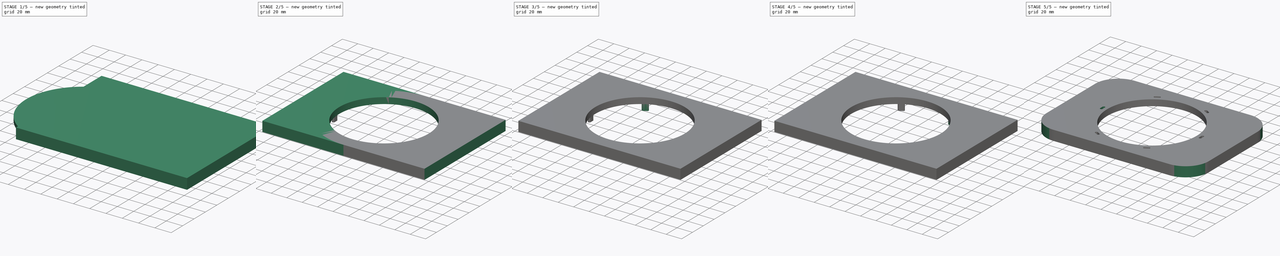
[diagram: build sequence overview — one tinted view per stage of 5, left to right]
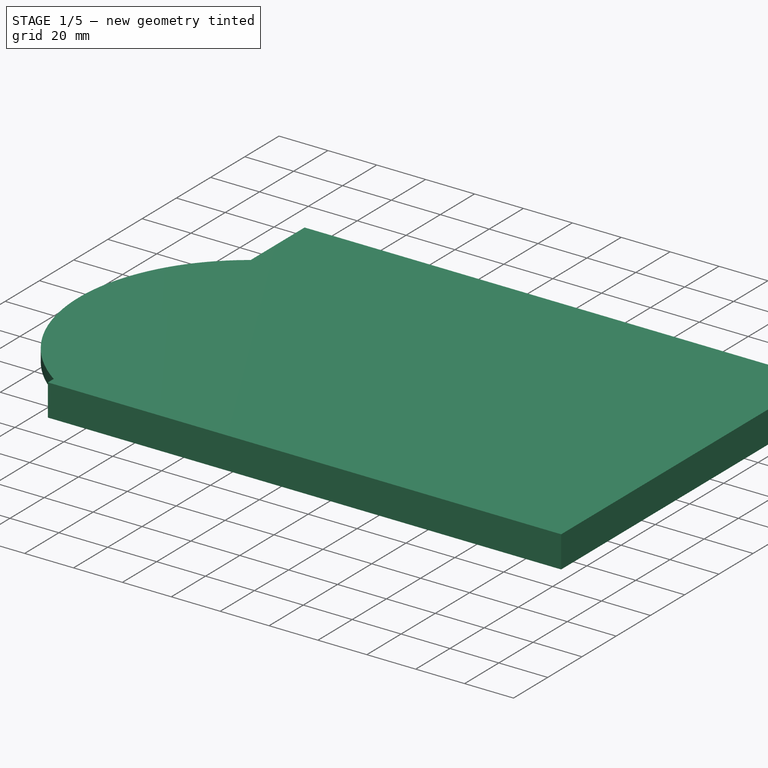
[diagram: stage 1 of 5 — iso view after this stage's code; geometry added in this stage tinted green]
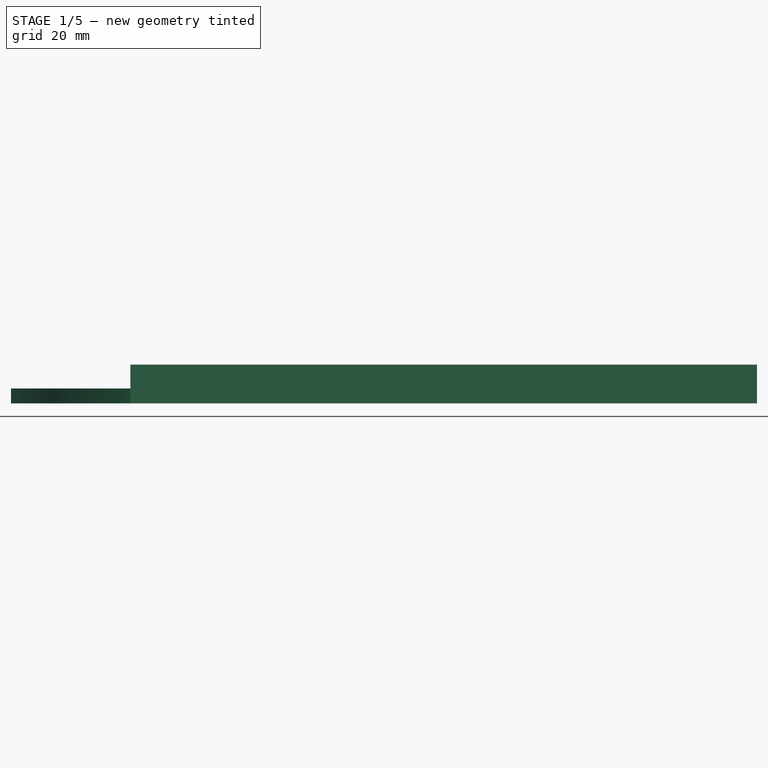
[diagram: stage 1 of 5 — front view after this stage's code; geometry added in this stage tinted green]
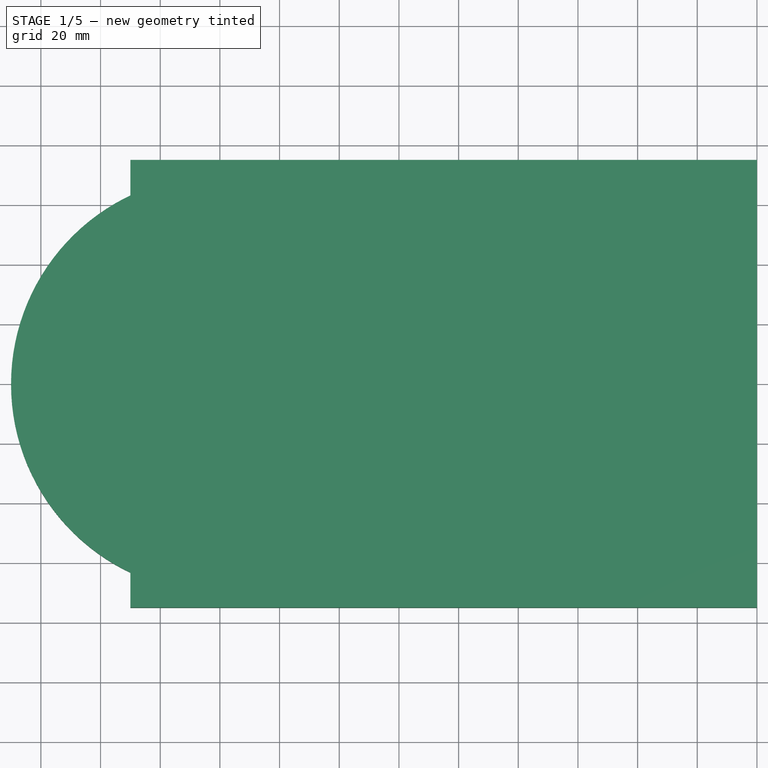
[diagram: stage 1 of 5 — top view after this stage's code; geometry added in this stage tinted green]
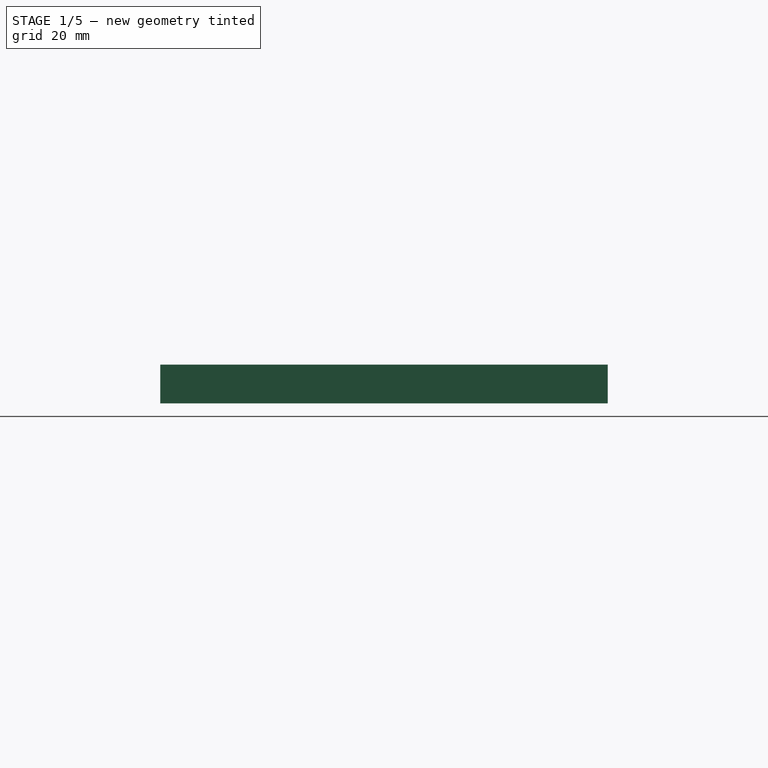
[diagram: stage 1 of 5 — right view after this stage's code; geometry added in this stage tinted green]
FCSTD DOCUMENT  (FreeCAD 0.16R6705 (Git))
Label: table_flat_mount_bearing
License: All rights reserved
LicenseURL: http://en.wikipedia.org/wiki/All_rights_reserved
objects: Part::MultiFuse×5, Part::Cylinder×3, Part::Cut×3, Sketcher::SketchObject×3, Part::Extrusion×3, Part::Mirroring×3, Part::Box×1, Part::Fillet×1
note: 22 computed .brp shape members not serialized (recipe doc carries the construction recipe); baked Part::Feature solids carry a one-line shape summary decoded from their .brp

FEATURE [Part::Box] Box  label="Cube012"
  Height = 13
  Length = 210
  Placement = pos=(-30,-75,0) rot=(0,0,1;0rad)
  Width = 150
FEATURE [Part::Cylinder] Cylinder
  Angle = 360
  Height = 13
  Placement = pos=(75,0,0) rot=(0,0,1;0rad)
  Radius = 75
FEATURE [Part::MultiFuse] Fusion
  Shapes = -> [Cylinder,Box]
FEATURE [Part::Cylinder] Cylinder002
  Angle = 360
  Height = 5
  Radius = 70
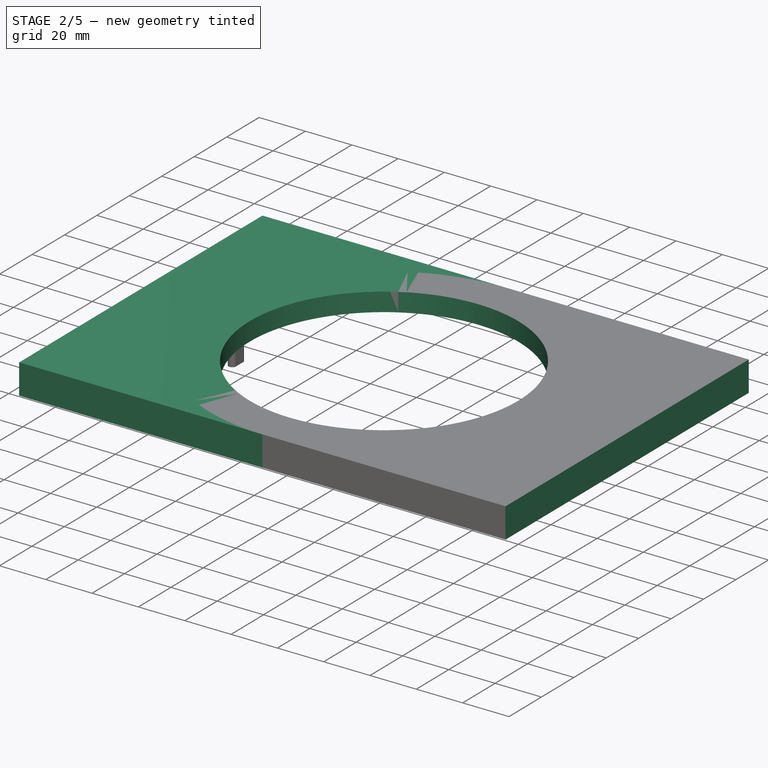
[diagram: stage 2 of 5 — iso view after this stage's code; geometry added in this stage tinted green]
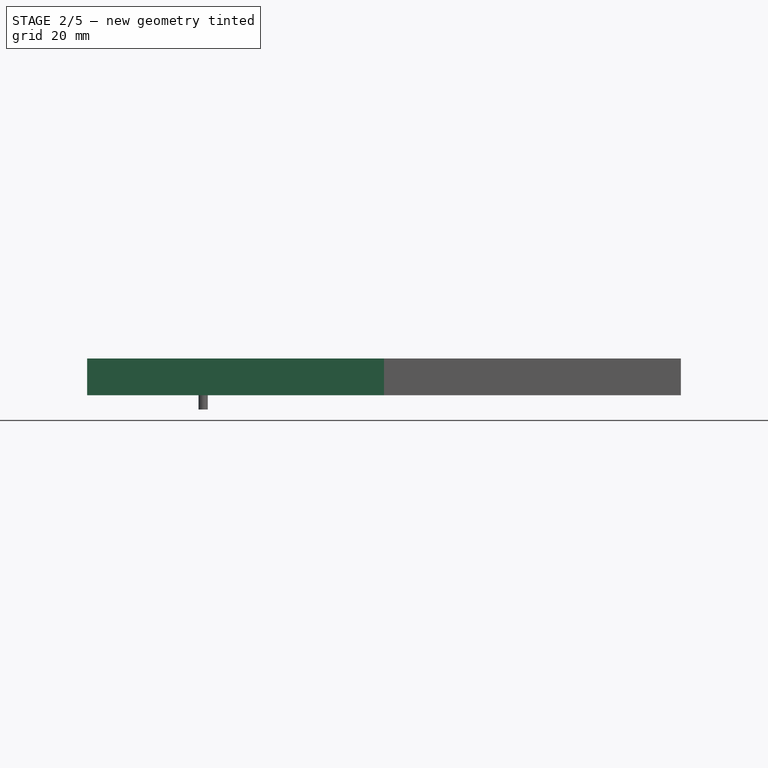
[diagram: stage 2 of 5 — front view after this stage's code; geometry added in this stage tinted green]
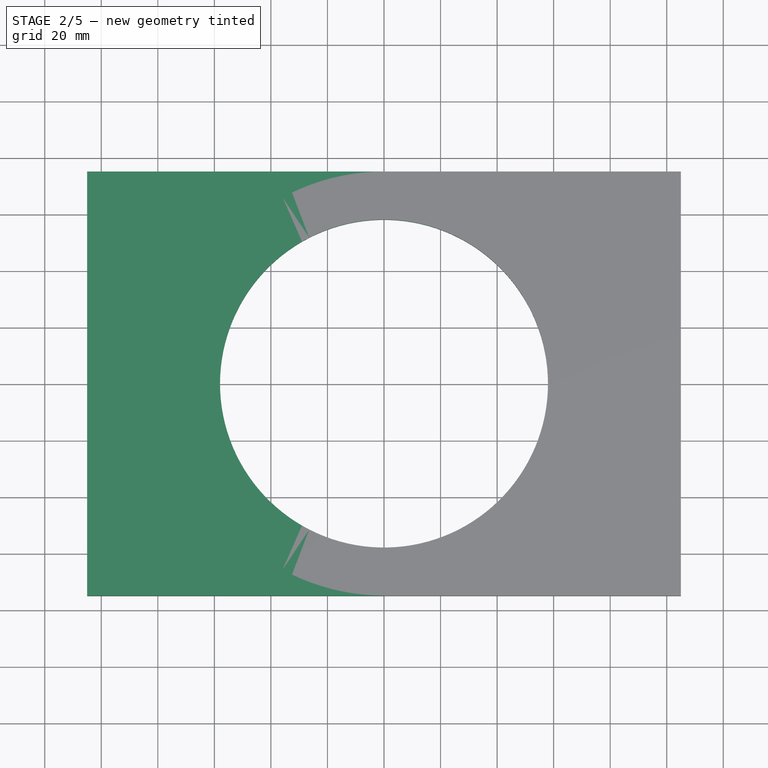
[diagram: stage 2 of 5 — top view after this stage's code; geometry added in this stage tinted green]
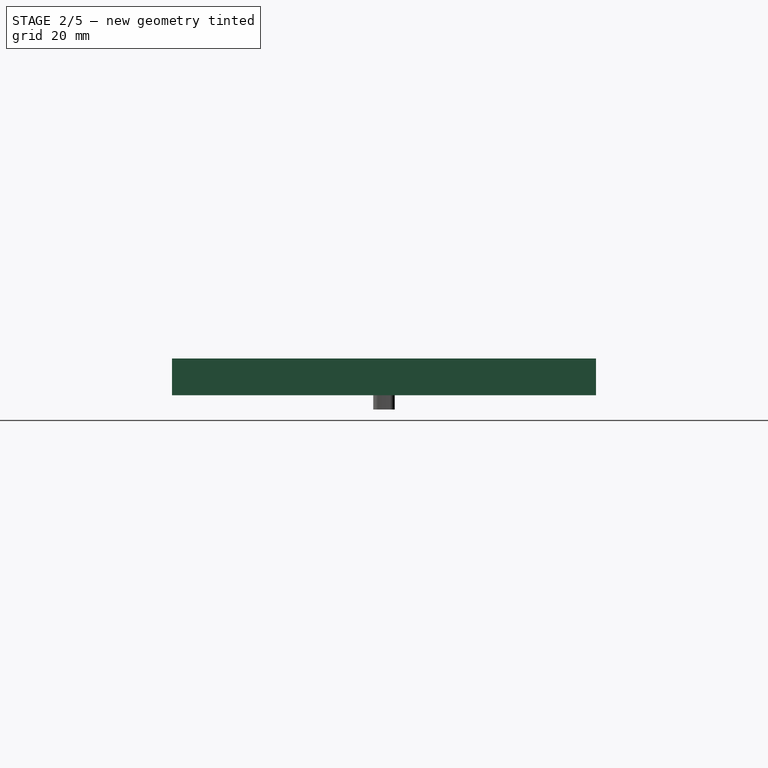
[diagram: stage 2 of 5 — right view after this stage's code; geometry added in this stage tinted green]
FEATURE [Part::Cylinder] Cylinder001
  Angle = 360
  Height = 14
  Placement = pos=(75,0,0) rot=(0,0,1;0rad)
  Radius = 58
FEATURE [Part::Cut] Cut
  Base = -> Fusion
  Placement = pos=(-75,0,0) rot=(0,0,1;0rad)
  Tool = -> Cylinder001
FEATURE [Sketcher::SketchObject] Sketch002
  Placement = pos=(0,0,10) rot=(0,0,1;0rad)
  sketch-geometry (4):
    g0: ArcOfCircle CenterX=75 CenterY=0 CenterZ=0 NormalX=0 NormalY=0 NormalZ=1 Radius=65.6 StartAngle=3.10935 EndAngle=3.17384
    g1: ArcOfCircle CenterX=75 CenterY=0 CenterZ=0 NormalX=0 NormalY=0 NormalZ=1 Radius=62.4 StartAngle=3.10503 EndAngle=3.17816
    g2: ArcOfCircle CenterX=11.0378 CenterY=2.2 CenterZ=0 NormalX=0 NormalY=0 NormalZ=1 Radius=1.60597 StartAngle=0.0506133 EndAngle=3.19471
    g3: ArcOfCircle CenterX=11.0378 CenterY=-2.2 CenterZ=0 NormalX=0 NormalY=0 NormalZ=1 Radius=1.60597 StartAngle=3.08848 EndAngle=6.23257
  constraints (16):
    c: DistanceY(g0) = 0
    c: DistanceX(g0) = 75
    c: Radius(g0) = 65.6
    c: DistanceY(g1) = 0
    c: DistanceX(g1) = 75
    c: Radius(g1) = 62.4
    c: Coincident(g2,g0)
    c: Coincident(g2,g1)
    c: DistanceY(g2) = 2.2
    c: DistanceX(g2) = 11.0378
    c: Coincident(g3,g0)
    c: Coincident(g3,g1)
    c: DistanceY(g3) = -2.2
    c: DistanceX(g3) = 11.0378
    c: Radius(g3) = 1.60597
    c: Radius(g2) = 1.60597
FEATURE [Part::Extrusion] Extrude002
  Base = -> Sketch002
  Dir = (0,0,-15)
  Placement = pos=(-75,0,0) rot=(0,0,1;0rad)
  Solid = true
FEATURE [Part::Cut] Cut001
  Base = -> Cut
  Tool = -> Cylinder002
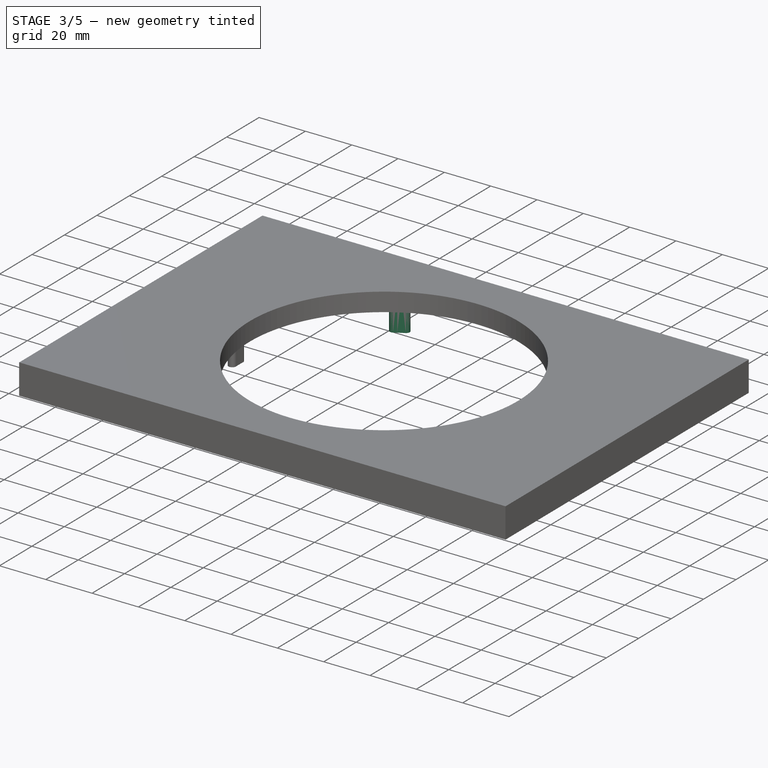
[diagram: stage 3 of 5 — iso view after this stage's code; geometry added in this stage tinted green]
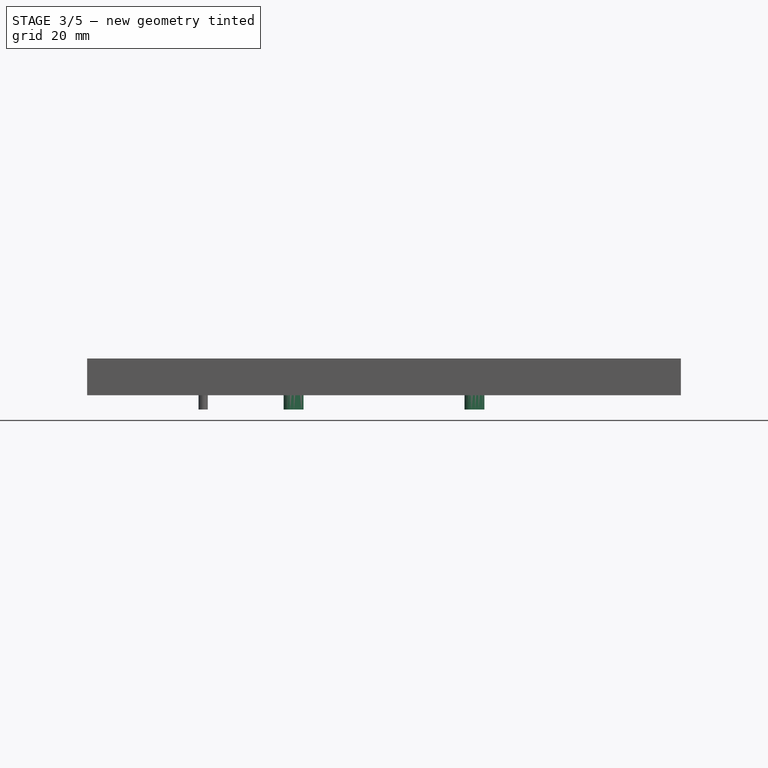
[diagram: stage 3 of 5 — front view after this stage's code; geometry added in this stage tinted green]
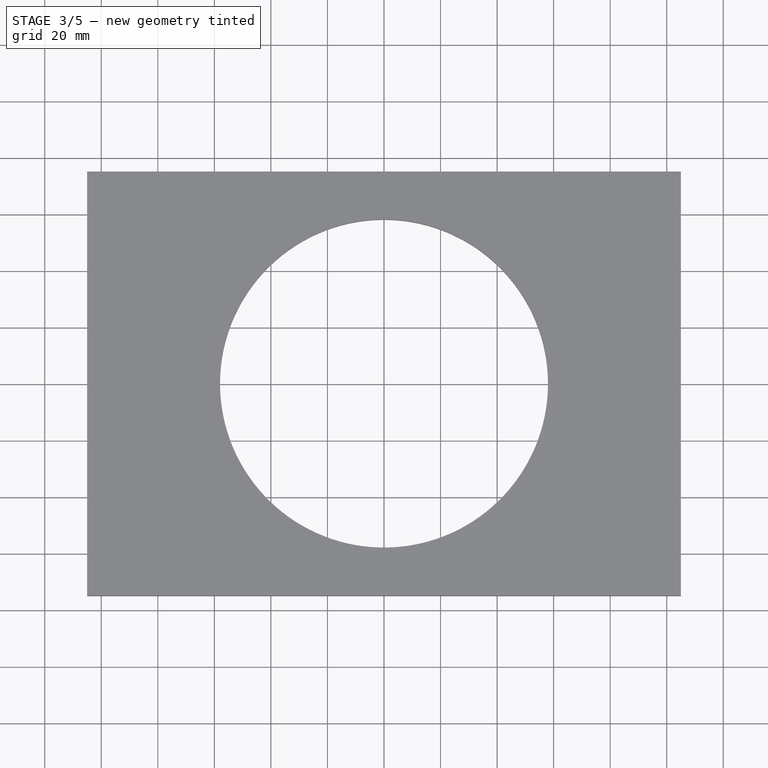
[diagram: stage 3 of 5 — top view after this stage's code; geometry added in this stage tinted green]
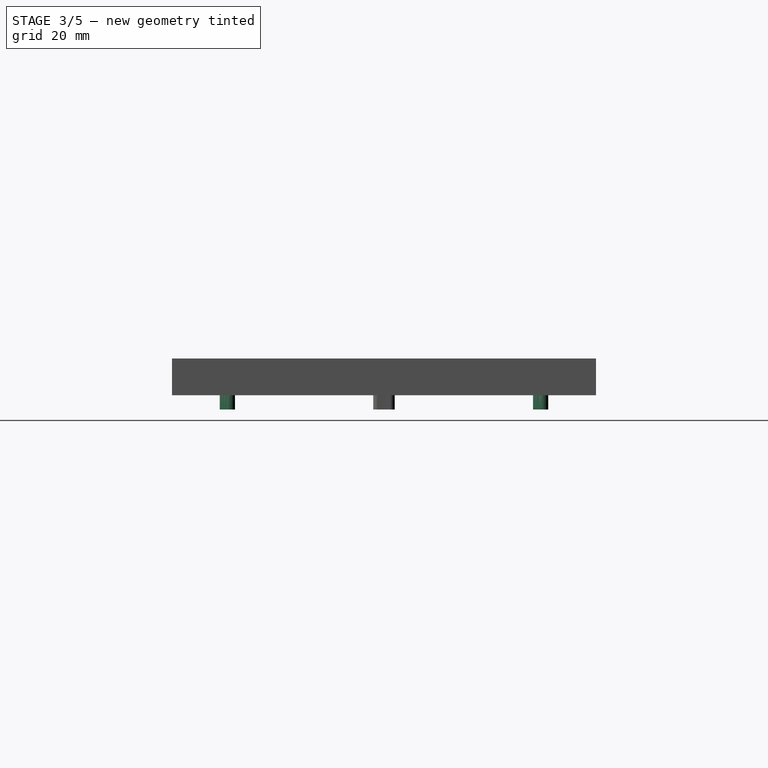
[diagram: stage 3 of 5 — right view after this stage's code; geometry added in this stage tinted green]
FEATURE [Sketcher::SketchObject] Sketch001
  Placement = pos=(0,0,10) rot=(0,0,1;0rad)
  sketch-geometry (4):
    g0: ArcOfCircle CenterX=75 CenterY=0 CenterZ=0 NormalX=0 NormalY=0 NormalZ=1 Radius=65.6 StartAngle=3.10935 EndAngle=3.17384
    g1: ArcOfCircle CenterX=75 CenterY=0 CenterZ=0 NormalX=0 NormalY=0 NormalZ=1 Radius=62.4 StartAngle=3.10503 EndAngle=3.17816
    g2: ArcOfCircle CenterX=11.0378 CenterY=2.2 CenterZ=0 NormalX=0 NormalY=0 NormalZ=1 Radius=1.60597 StartAngle=0.0506133 EndAngle=3.19471
    g3: ArcOfCircle CenterX=11.0378 CenterY=-2.2 CenterZ=0 NormalX=0 NormalY=0 NormalZ=1 Radius=1.60597 StartAngle=3.08848 EndAngle=6.23257
  constraints (16):
    c: DistanceY(g0) = 0
    c: DistanceX(g0) = 75
    c: Radius(g0) = 65.6
    c: DistanceY(g1) = 0
    c: DistanceX(g1) = 75
    c: Radius(g1) = 62.4
    c: Coincident(g2,g0)
    c: Coincident(g2,g1)
    c: DistanceY(g2) = 2.2
    c: DistanceX(g2) = 11.0378
    c: Coincident(g3,g0)
    c: Coincident(g3,g1)
    c: DistanceY(g3) = -2.2
    c: DistanceX(g3) = 11.0378
    c: Radius(g3) = 1.60597
    c: Radius(g2) = 1.60597
FEATURE [Part::Extrusion] Extrude001
  Base = -> Sketch001
  Dir = (0,0,-15)
  Placement = pos=(-75,0,0) rot=(0,0,1;0rad)
  Solid = true
FEATURE [Part::Mirroring] Part__Mirroring002  label="Extrude (Mirror #1)002"
  Base = (0,0,0)
  Normal = (1,0,0)
  Source = -> Extrude002
FEATURE [Part::MultiFuse] Fusion032
  Placement = pos=(0,0,0) rot=(0,0,1;2.0944rad)
  Shapes = -> [Part__Mirroring002,Extrude002]
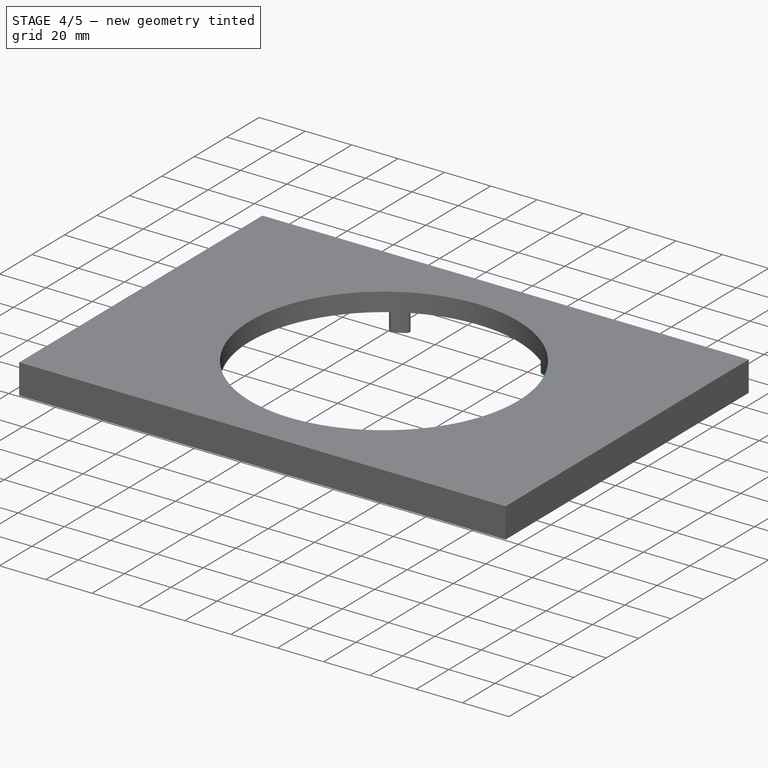
[diagram: stage 4 of 5 — iso view after this stage's code; geometry added in this stage tinted green]
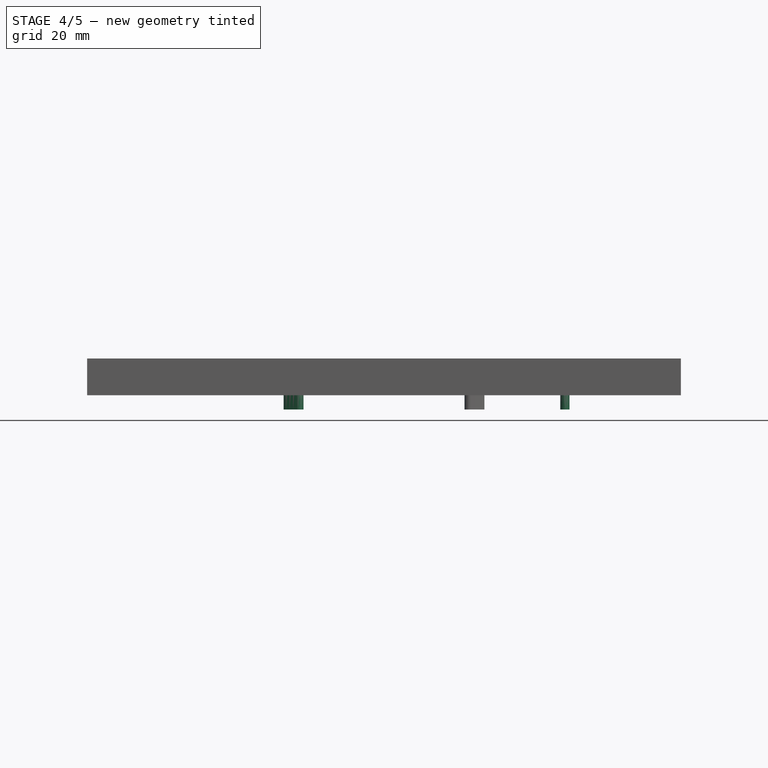
[diagram: stage 4 of 5 — front view after this stage's code; geometry added in this stage tinted green]
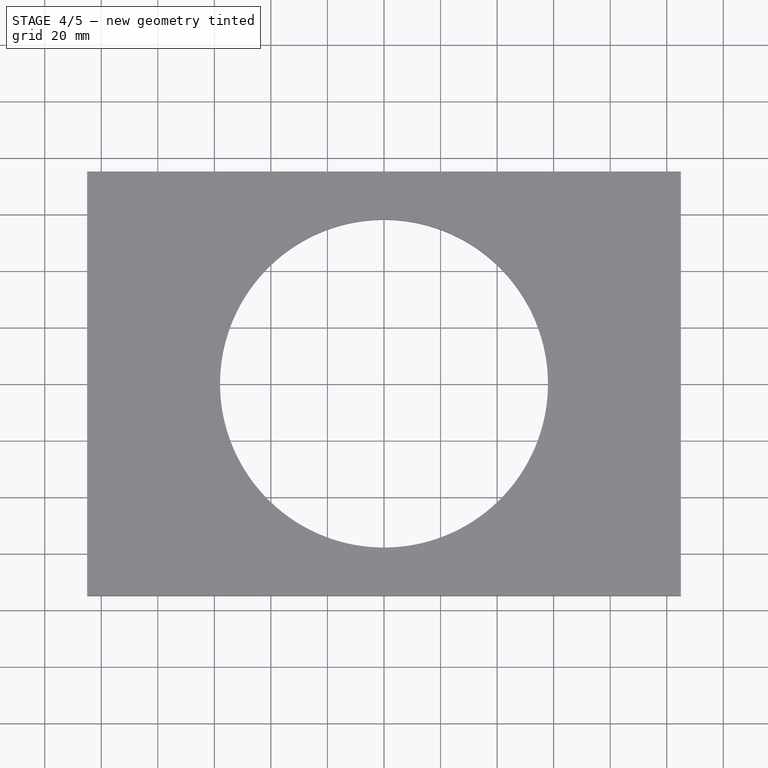
[diagram: stage 4 of 5 — top view after this stage's code; geometry added in this stage tinted green]
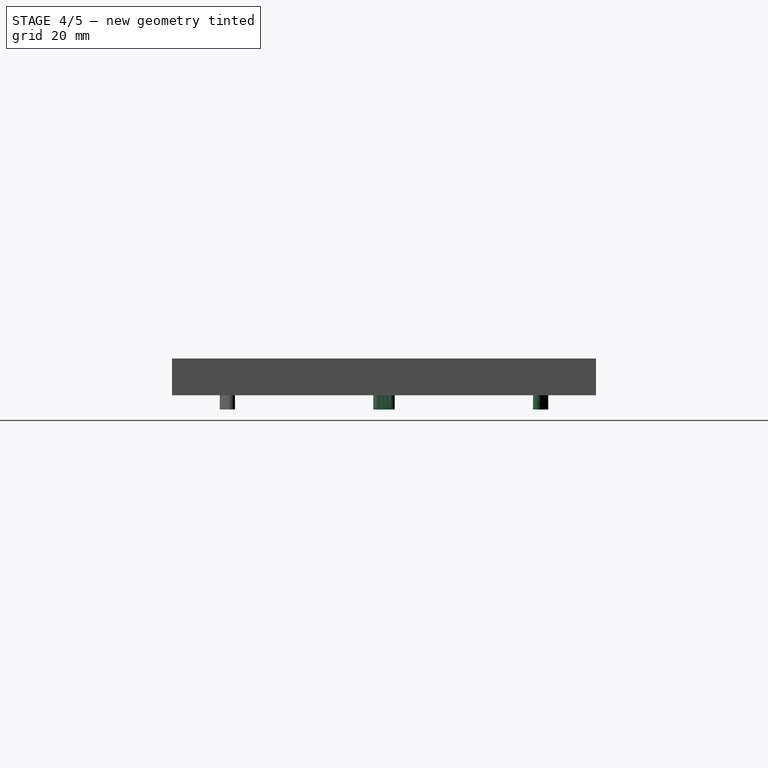
[diagram: stage 4 of 5 — right view after this stage's code; geometry added in this stage tinted green]
FEATURE [Sketcher::SketchObject] Sketch
  Placement = pos=(0,0,10) rot=(0,0,1;0rad)
  sketch-geometry (4):
    g0: ArcOfCircle CenterX=75 CenterY=0 CenterZ=0 NormalX=0 NormalY=0 NormalZ=1 Radius=65.6 StartAngle=3.10935 EndAngle=3.17384
    g1: ArcOfCircle CenterX=75 CenterY=0 CenterZ=0 NormalX=0 NormalY=0 NormalZ=1 Radius=62.4 StartAngle=3.10503 EndAngle=3.17816
    g2: ArcOfCircle CenterX=11.0378 CenterY=2.2 CenterZ=0 NormalX=0 NormalY=0 NormalZ=1 Radius=1.60597 StartAngle=0.0506133 EndAngle=3.19471
    g3: ArcOfCircle CenterX=11.0378 CenterY=-2.2 CenterZ=0 NormalX=0 NormalY=0 NormalZ=1 Radius=1.60597 StartAngle=3.08848 EndAngle=6.23257
  constraints (16):
    c: DistanceY(g0) = 0
    c: DistanceX(g0) = 75
    c: Radius(g0) = 65.6
    c: DistanceY(g1) = 0
    c: DistanceX(g1) = 75
    c: Radius(g1) = 62.4
    c: Coincident(g2,g0)
    c: Coincident(g2,g1)
    c: DistanceY(g2) = 2.2
    c: DistanceX(g2) = 11.0378
    c: Coincident(g3,g0)
    c: Coincident(g3,g1)
    c: DistanceY(g3) = -2.2
    c: DistanceX(g3) = 11.0378
    c: Radius(g3) = 1.60597
    c: Radius(g2) = 1.60597
FEATURE [Part::Extrusion] Extrude
  Base = -> Sketch
  Dir = (0,0,-15)
  Placement = pos=(-75,0,0) rot=(0,0,1;0rad)
  Solid = true
FEATURE [Part::Mirroring] Part__Mirroring  label="Extrude (Mirror #1)"
  Base = (0,0,0)
  Normal = (1,0,0)
  Source = -> Extrude
FEATURE [Part::Mirroring] Part__Mirroring001  label="Extrude (Mirror #1)001"
  Base = (0,0,0)
  Normal = (1,0,0)
  Source = -> Extrude001
FEATURE [Part::MultiFuse] Fusion031
  Placement = pos=(0,0,0) rot=(0,0,1;1.0472rad)
  Shapes = -> [Part__Mirroring001,Extrude001]
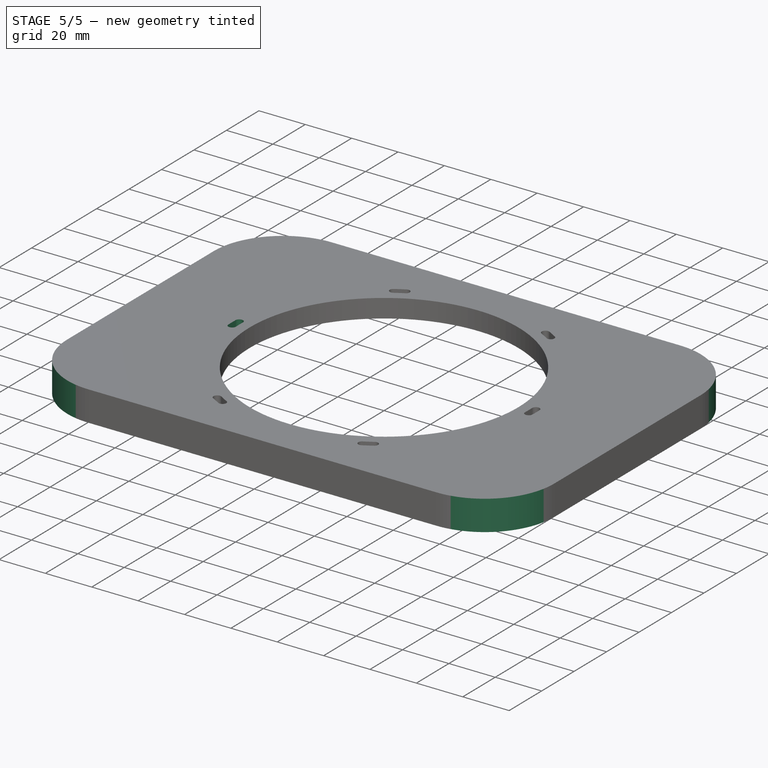
[diagram: stage 5 of 5 — iso view after this stage's code; geometry added in this stage tinted green]
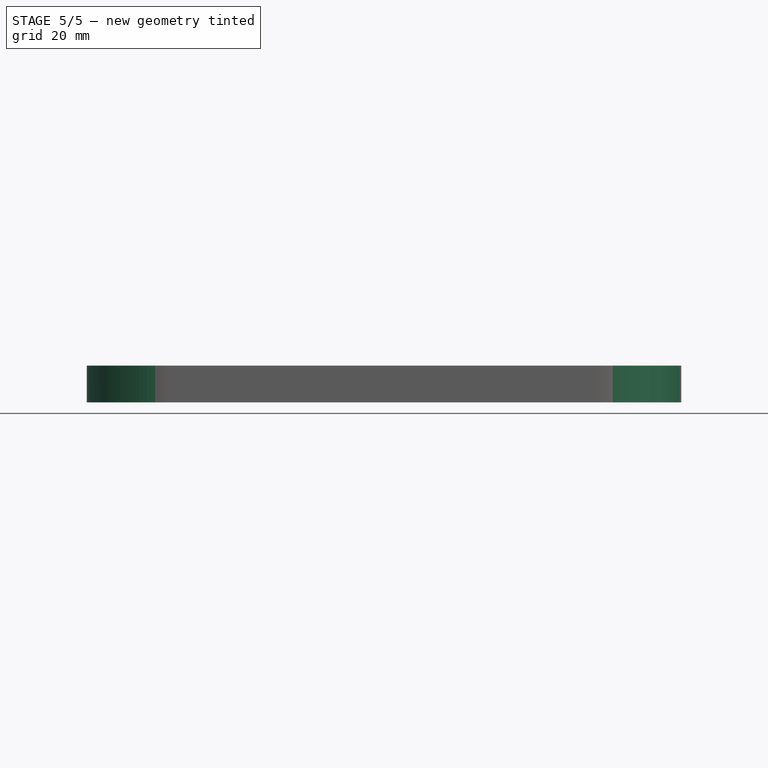
[diagram: stage 5 of 5 — front view after this stage's code; geometry added in this stage tinted green]
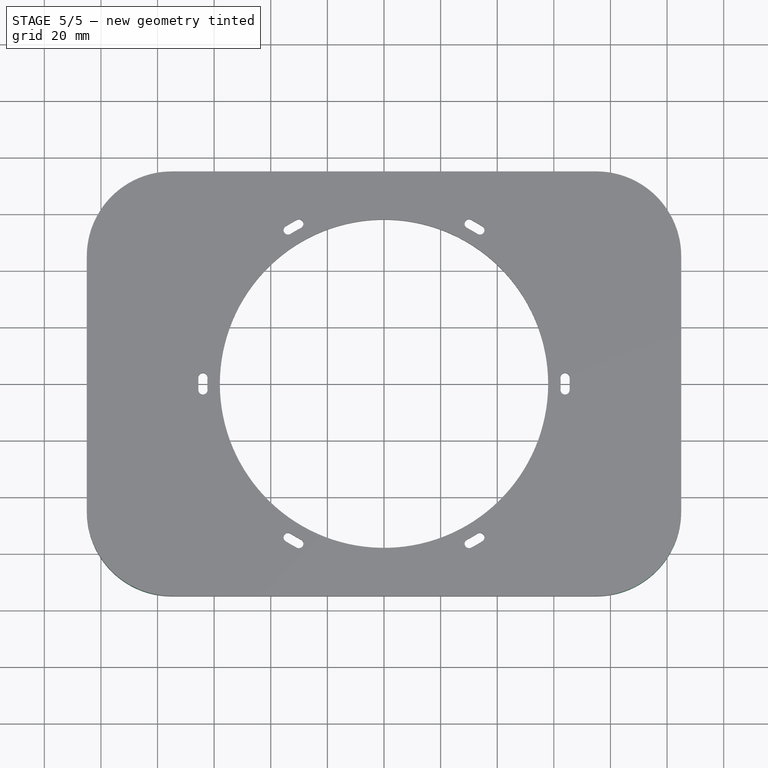
[diagram: stage 5 of 5 — top view after this stage's code; geometry added in this stage tinted green]
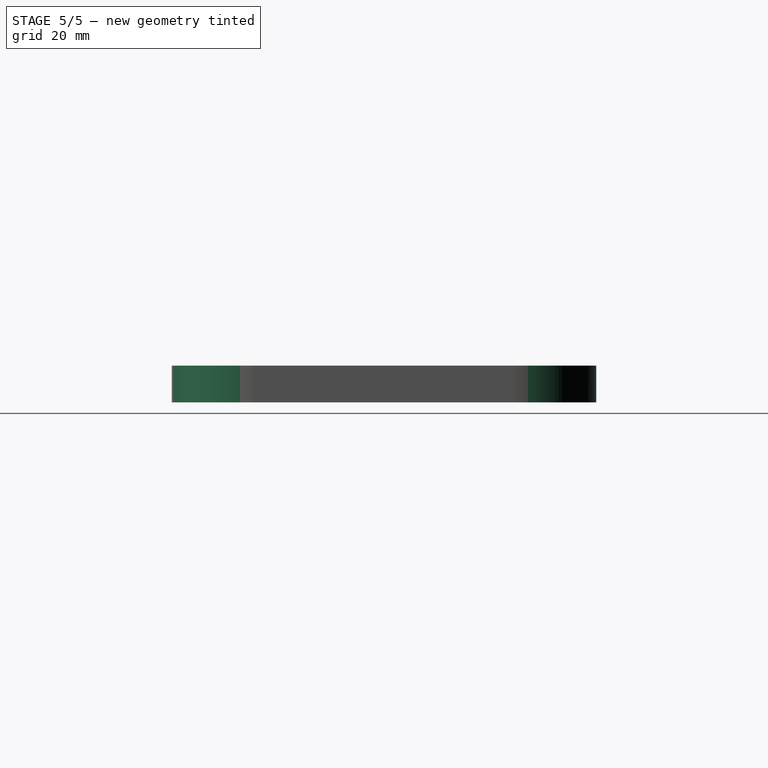
[diagram: stage 5 of 5 — right view after this stage's code; geometry added in this stage tinted green]
FEATURE [Part::MultiFuse] Fusion030
  Shapes = -> [Part__Mirroring,Extrude]
FEATURE [Part::MultiFuse] Fusion033
  Placement = pos=(0,0,5) rot=(0,0,1;0rad)
  Shapes = -> [Fusion030,Fusion031,Fusion032]
FEATURE [Part::Cut] Cut002
  Base = -> Cut001
  Tool = -> Fusion033
FEATURE [Part::Fillet] Fillet
  Base = -> Cut002
  Edges = 4 edges r=30: [Edge1,Edge3,Edge14,Edge44]
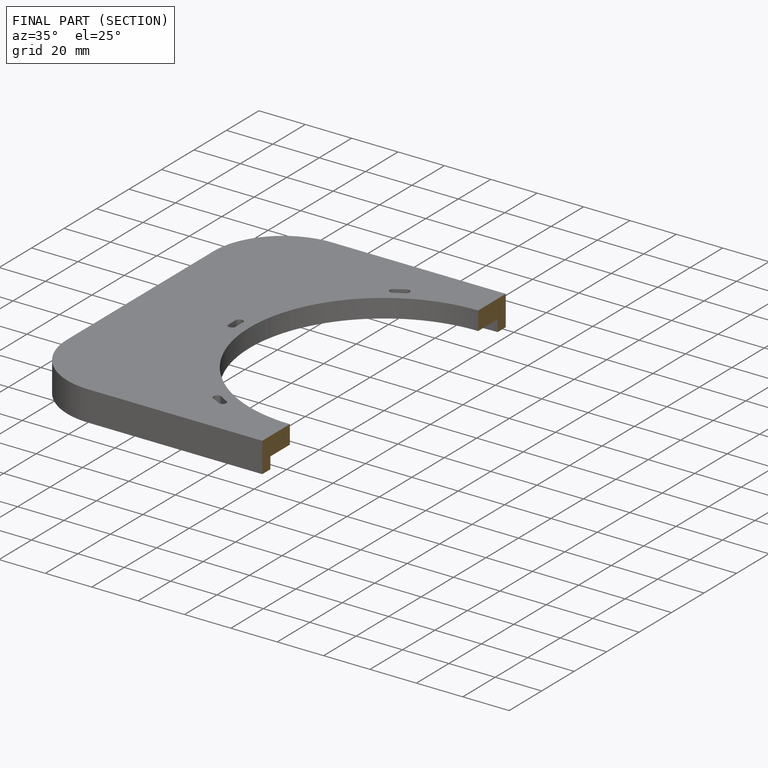
[diagram: finished part — half-section view (interior)]
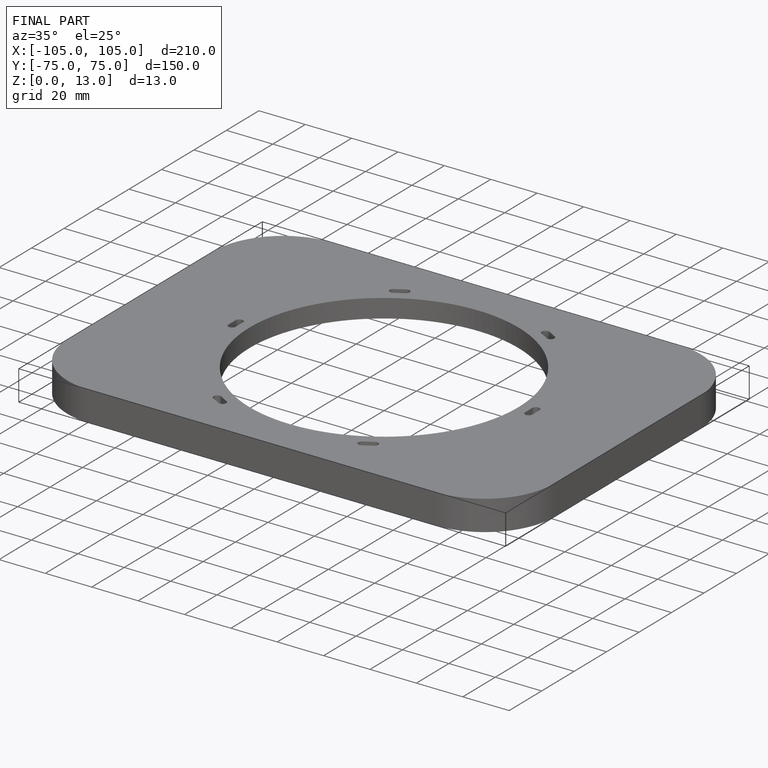
[diagram: finished part — iso view with bounding-box wireframe]
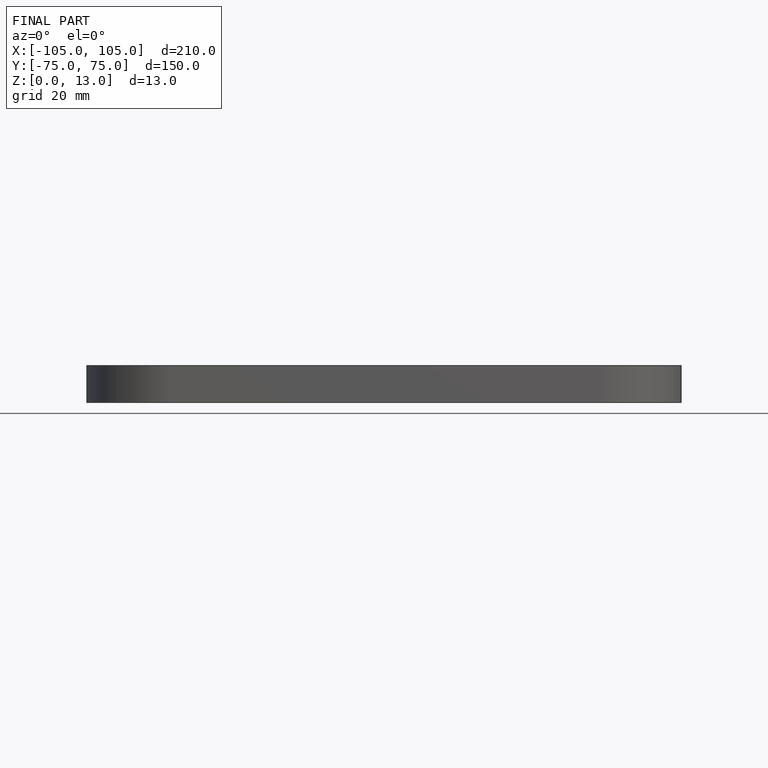
[diagram: finished part — front view with bounding-box wireframe]
